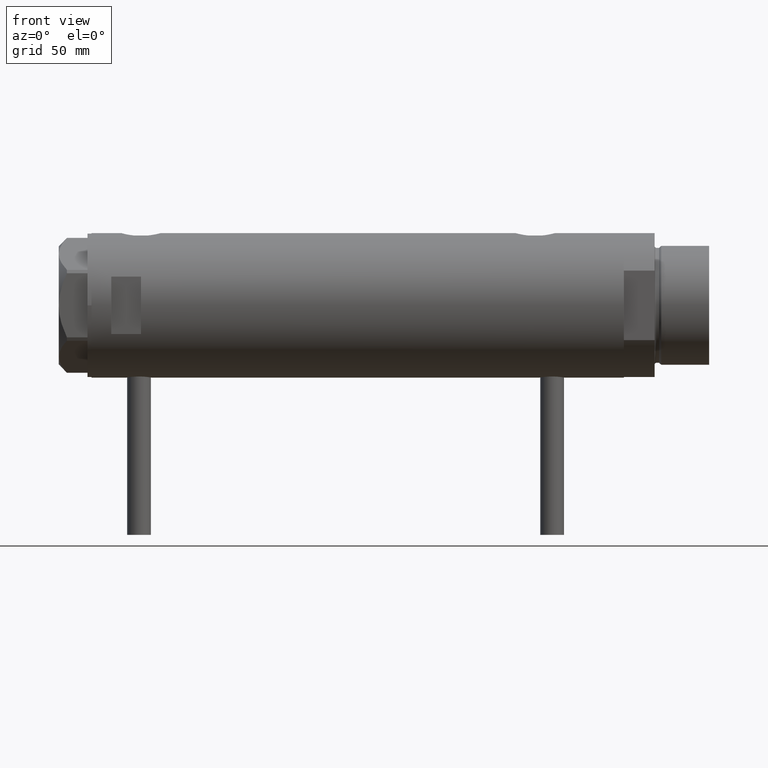
[diagram: clean part render]
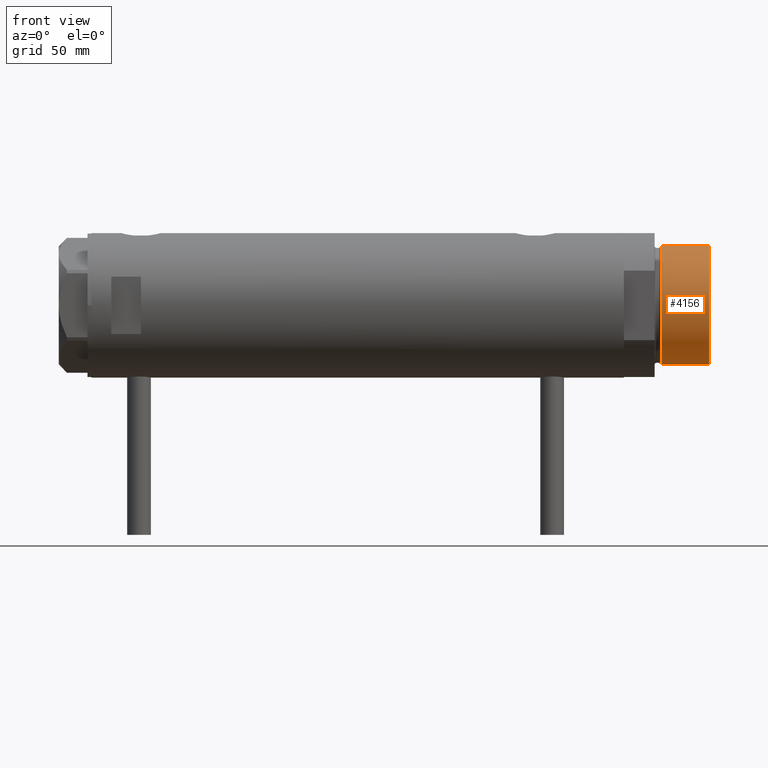
[diagram: same view with one face highlighted and labeled with its STEP entity id]
A machine part, front view. The second image highlights one B-rep face of the part: STEP entity #4156.
In plain terms, the highlighted cylindrical surface (partial cylindrical patch) has radius 30 mm, axis along (-1, -0, 0).
Its self-contained STEP definition (entity closure, byte-faithful):
#135 = CARTESIAN_POINT ( 'NONE',  ( 30.00000000000000000, 3.673940397442059178E-15, 43.07000000000000028 ) ) ;
#256 = ORIENTED_EDGE ( 'NONE', *, *, #504, .T. ) ;
#408 = AXIS2_PLACEMENT_3D ( 'NONE', #810, #2287, #2630 ) ;
#504 = EDGE_CURVE ( 'NONE', #2255, #2952, #2030, .T. ) ;
#654 = DIRECTION ( 'NONE',  ( -0.000000000000000000, -0.000000000000000000, -1.000000000000000000 ) ) ;
#730 = DIRECTION ( 'NONE',  ( 1.000000000000000000, 0.000000000000000000, 0.000000000000000000 ) ) ;
#810 = CARTESIAN_POINT ( 'NONE',  ( 0.000000000000000000, 0.000000000000000000, 43.07000000000000028 ) ) ;
#996 = VERTEX_POINT ( 'NONE', #135 ) ;
#1192 = DIRECTION ( 'NONE',  ( -0.000000000000000000, -0.000000000000000000, 1.000000000000000000 ) ) ;
#1295 = EDGE_LOOP ( 'NONE', ( #4158, #3873, #256, #1822 ) ) ;
#1337 = DIRECTION ( 'NONE',  ( 1.000000000000000000, 0.000000000000000000, 0.000000000000000000 ) ) ;
#1354 = LINE ( 'NONE', #3229, #2272 ) ;
#1453 = CARTESIAN_POINT ( 'NONE',  ( 0.000000000000000000, 0.000000000000000000, 18.87384048104053846 ) ) ;
#1472 = AXIS2_PLACEMENT_3D ( 'NONE', #2010, #3930, #1337 ) ;
#1562 = CIRCLE ( 'NONE', #2654, 30.00000000000000000 ) ;
#1822 = ORIENTED_EDGE ( 'NONE', *, *, #4057, .T. ) ;
#1944 = CARTESIAN_POINT ( 'NONE',  ( 30.00000000000000000, 3.673940397442059178E-15, 18.87384048104053846 ) ) ;
#2010 = CARTESIAN_POINT ( 'NONE',  ( 0.000000000000000000, 0.000000000000000000, 43.07000000000000028 ) ) ;
#2030 = LINE ( 'NONE', #2843, #3696 ) ;
#2061 = CARTESIAN_POINT ( 'NONE',  ( -30.00000000000000000, 0.000000000000000000, 18.87384048104053846 ) ) ;
#2074 = DIRECTION ( 'NONE',  ( -0.000000000000000000, -0.000000000000000000, -1.000000000000000000 ) ) ;
#2255 = VERTEX_POINT ( 'NONE', #3624 ) ;
#2272 = VECTOR ( 'NONE', #654, 1000.000000000000000 ) ;
#2287 = DIRECTION ( 'NONE',  ( -0.000000000000000000, -0.000000000000000000, -1.000000000000000000 ) ) ;
#2630 = DIRECTION ( 'NONE',  ( -1.000000000000000000, 0.000000000000000000, 0.000000000000000000 ) ) ;
#2654 = AXIS2_PLACEMENT_3D ( 'NONE', #1453, #1192, #730 ) ;
#2748 = VERTEX_POINT ( 'NONE', #1944 ) ;
#2843 = CARTESIAN_POINT ( 'NONE',  ( -30.00000000000000000, 0.000000000000000000, 43.07000000000000028 ) ) ;
#2880 = CIRCLE ( 'NONE', #1472, 30.00000000000000000 ) ;
#2944 = EDGE_CURVE ( 'NONE', #2255, #996, #2880, .T. ) ;
#2952 = VERTEX_POINT ( 'NONE', #2061 ) ;
#3229 = CARTESIAN_POINT ( 'NONE',  ( 30.00000000000000000, 3.673940397442059178E-15, 43.07000000000000028 ) ) ;
#3624 = CARTESIAN_POINT ( 'NONE',  ( -30.00000000000000000, 0.000000000000000000, 43.07000000000000028 ) ) ;
#3696 = VECTOR ( 'NONE', #2074, 1000.000000000000000 ) ;
#3784 = FACE_OUTER_BOUND ( 'NONE', #1295, .T. ) ;
#3873 = ORIENTED_EDGE ( 'NONE', *, *, #2944, .F. ) ;
#3930 = DIRECTION ( 'NONE',  ( 0.000000000000000000, 0.000000000000000000, 1.000000000000000000 ) ) ;
#4057 = EDGE_CURVE ( 'NONE', #2952, #2748, #1562, .T. ) ;
#4156 = ADVANCED_FACE ( 'NONE', ( #3784 ), #4484, .T. ) ;
#4158 = ORIENTED_EDGE ( 'NONE', *, *, #4441, .F. ) ;
#4441 = EDGE_CURVE ( 'NONE', #996, #2748, #1354, .T. ) ;
#4484 = CYLINDRICAL_SURFACE ( 'NONE', #408, 30.00000000000000000 ) ;